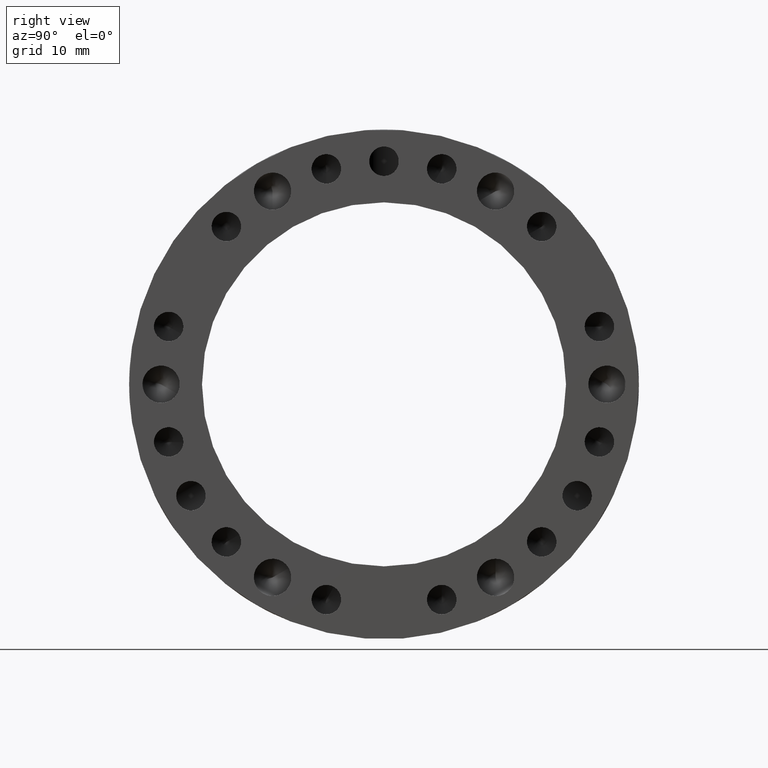
[diagram: clean part render]
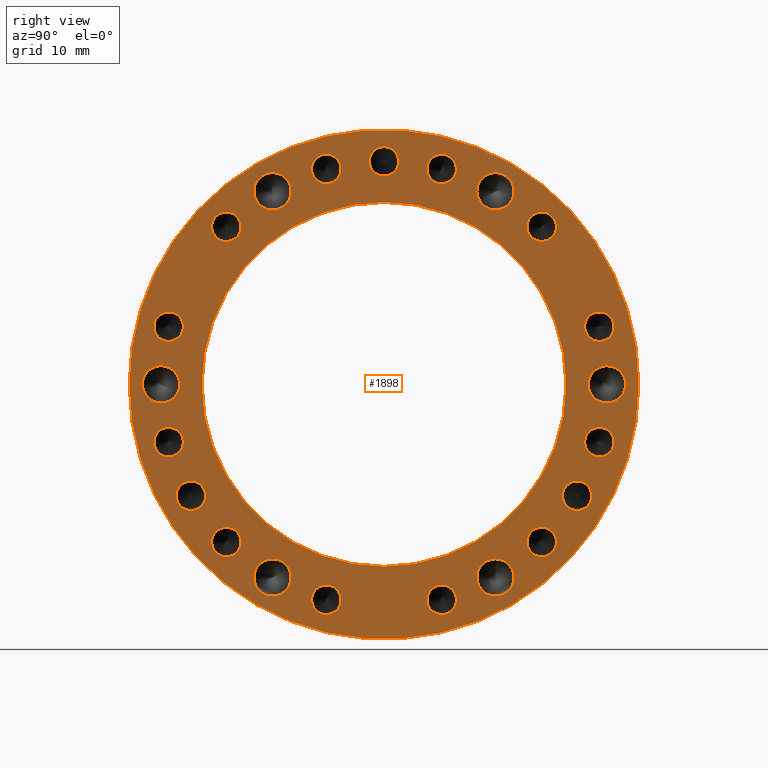
[diagram: same view with one face highlighted and labeled with its STEP entity id]
A machine part, right view. The second image highlights one B-rep face of the part: STEP entity #1898.
In plain terms, the highlighted planar face has unit normal (1, 0, 0).
Its self-contained STEP definition (entity closure, byte-faithful):
#90=CARTESIAN_POINT('',(13.999999999999995,5.530566605011758,22.261355564547593));
#91=VERTEX_POINT('',#90);
#92=CARTESIAN_POINT('',(13.999999999999995,6.341066605011759,23.665182744082166));
#93=DIRECTION('',(-1.0,0.0,0.0));
#94=DIRECTION('',(0.0,-0.5,-0.866025403784438));
#95=AXIS2_PLACEMENT_3D('',#92,#93,#94);
#96=CIRCLE('',#95,1.621);
#97=EDGE_CURVE('',#91,#91,#96,.T.);
#127=CARTESIAN_POINT('',(13.999999999999995,15.920288959535842,16.513616139070404));
#128=VERTEX_POINT('',#127);
#129=CARTESIAN_POINT('',(13.999999999999995,17.324116139070419,17.324116139070405));
#130=DIRECTION('',(-1.0,0.0,0.0));
#131=DIRECTION('',(0.0,-0.866025403784439,-0.499999999999999));
#132=AXIS2_PLACEMENT_3D('',#129,#130,#131);
#133=CIRCLE('',#132,1.621);
#134=EDGE_CURVE('',#128,#128,#133,.T.);
#164=CARTESIAN_POINT('',(13.999999999999995,22.044182744082164,6.34106660501176));
#165=VERTEX_POINT('',#164);
#166=CARTESIAN_POINT('',(13.999999999999995,23.665182744082166,6.341066605011761));
#167=DIRECTION('',(-1.0,0.0,0.0));
#168=DIRECTION('',(0.0,-1.0,0.0));
#169=AXIS2_PLACEMENT_3D('',#166,#167,#168);
#170=CIRCLE('',#169,1.621);
#171=EDGE_CURVE('',#165,#165,#170,.T.);
#201=CARTESIAN_POINT('',(13.999999999999995,22.261355564547593,-5.530566605011758));
#202=VERTEX_POINT('',#201);
#203=CARTESIAN_POINT('',(13.999999999999995,23.665182744082166,-6.341066605011759));
#204=DIRECTION('',(-1.0,0.0,0.0));
#205=DIRECTION('',(0.0,-0.866025403784438,0.5));
#206=AXIS2_PLACEMENT_3D('',#203,#204,#205);
#207=CIRCLE('',#206,1.621);
#208=EDGE_CURVE('',#202,#202,#207,.T.);
#238=CARTESIAN_POINT('',(13.999999999999995,16.513616139070415,-15.920288959535833));
#239=VERTEX_POINT('',#238);
#240=CARTESIAN_POINT('',(13.999999999999995,17.324116139070412,-17.324116139070409));
#241=DIRECTION('',(-1.0,0.0,0.0));
#242=DIRECTION('',(0.0,-0.5,0.866025403784439));
#243=AXIS2_PLACEMENT_3D('',#240,#241,#242);
#244=CIRCLE('',#243,1.621);
#245=EDGE_CURVE('',#239,#239,#244,.T.);
#275=CARTESIAN_POINT('',(13.999999999999995,6.341066605011763,-22.044182744082164));
#276=VERTEX_POINT('',#275);
#277=CARTESIAN_POINT('',(13.999999999999995,6.341066605011764,-23.665182744082166));
#278=DIRECTION('',(-1.0,0.0,0.0));
#279=DIRECTION('',(0.0,0.0,1.0));
#280=AXIS2_PLACEMENT_3D('',#277,#278,#279);
#281=CIRCLE('',#280,1.621);
#282=EDGE_CURVE('',#276,#276,#281,.T.);
#312=CARTESIAN_POINT('',(13.999999999999995,-5.530566605011755,-22.261355564547593));
#313=VERTEX_POINT('',#312);
#314=CARTESIAN_POINT('',(13.999999999999995,-6.341066605011757,-23.665182744082173));
#315=DIRECTION('',(-1.0,0.0,0.0));
#316=DIRECTION('',(0.0,0.5,0.866025403784438));
#317=AXIS2_PLACEMENT_3D('',#314,#315,#316);
#318=CIRCLE('',#317,1.621);
#319=EDGE_CURVE('',#313,#313,#318,.T.);
#349=CARTESIAN_POINT('',(13.999999999999995,-15.920288959535833,-16.513616139070415));
#350=VERTEX_POINT('',#349);
#351=CARTESIAN_POINT('',(13.999999999999995,-17.324116139070409,-17.324116139070412));
#352=DIRECTION('',(-1.0,0.0,0.0));
#353=DIRECTION('',(0.0,0.866025403784439,0.5));
#354=AXIS2_PLACEMENT_3D('',#351,#352,#353);
#355=CIRCLE('',#354,1.621);
#356=EDGE_CURVE('',#350,#350,#355,.T.);
#386=CARTESIAN_POINT('',(13.999999999999995,-22.044182744082171,-6.341066605011766));
#387=VERTEX_POINT('',#386);
#388=CARTESIAN_POINT('',(13.999999999999995,-23.665182744082166,-6.341066605011765));
#389=DIRECTION('',(-1.0,0.0,0.0));
#390=DIRECTION('',(0.0,1.0,0.0));
#391=AXIS2_PLACEMENT_3D('',#388,#389,#390);
#392=CIRCLE('',#391,1.621);
#393=EDGE_CURVE('',#387,#387,#392,.T.);
#423=CARTESIAN_POINT('',(13.999999999999995,-22.261355564547593,5.53056660501175));
#424=VERTEX_POINT('',#423);
#425=CARTESIAN_POINT('',(13.999999999999995,-23.665182744082177,6.341066605011751));
#426=DIRECTION('',(-1.0,0.0,0.0));
#427=DIRECTION('',(0.0,0.866025403784439,-0.5));
#428=AXIS2_PLACEMENT_3D('',#425,#426,#427);
#429=CIRCLE('',#428,1.621);
#430=EDGE_CURVE('',#424,#424,#429,.T.);
#460=CARTESIAN_POINT('',(13.999999999999995,-16.513616139070418,15.920288959535831));
#461=VERTEX_POINT('',#460);
#462=CARTESIAN_POINT('',(13.999999999999995,-17.324116139070416,17.324116139070405));
#463=DIRECTION('',(-1.0,0.0,0.0));
#464=DIRECTION('',(0.0,0.5,-0.866025403784439));
#465=AXIS2_PLACEMENT_3D('',#462,#463,#464);
#466=CIRCLE('',#465,1.621);
#467=EDGE_CURVE('',#461,#461,#466,.T.);
#497=CARTESIAN_POINT('',(13.999999999999995,-6.341066605011767,22.044182744082164));
#498=VERTEX_POINT('',#497);
#499=CARTESIAN_POINT('',(13.999999999999995,-6.341066605011767,23.665182744082166));
#500=DIRECTION('',(-1.0,0.0,0.0));
#501=DIRECTION('',(0.0,0.0,-1.0));
#502=AXIS2_PLACEMENT_3D('',#499,#500,#501);
#503=CIRCLE('',#502,1.621);
#504=EDGE_CURVE('',#498,#498,#503,.T.);
#609=CARTESIAN_POINT('',(13.999999999999995,10.474647922241909,20.192622392718761));
#610=VERTEX_POINT('',#609);
#611=CARTESIAN_POINT('',(13.999999999999995,12.250000000000007,21.217622392718756));
#612=DIRECTION('',(-1.0,0.0,0.0));
#613=DIRECTION('',(0.0,-0.866025403784439,-0.499999999999999));
#614=AXIS2_PLACEMENT_3D('',#611,#612,#613);
#615=CIRCLE('',#614,2.05);
#616=EDGE_CURVE('',#610,#610,#615,.T.);
#721=CARTESIAN_POINT('',(13.999999999999995,22.72464792224191,1.025000000000005));
#722=VERTEX_POINT('',#721);
#723=CARTESIAN_POINT('',(13.999999999999995,24.500000000000011,4.440892E-015));
#724=DIRECTION('',(-1.0,0.0,0.0));
#725=DIRECTION('',(0.0,-0.866025403784438,0.5));
#726=AXIS2_PLACEMENT_3D('',#723,#724,#725);
#727=CIRCLE('',#726,2.05);
#728=EDGE_CURVE('',#722,#722,#727,.T.);
#833=CARTESIAN_POINT('',(13.999999999999995,12.250000000000018,-19.167622392718748));
#834=VERTEX_POINT('',#833);
#835=CARTESIAN_POINT('',(13.999999999999995,12.250000000000018,-21.217622392718752));
#836=DIRECTION('',(-1.0,0.0,0.0));
#837=DIRECTION('',(0.0,0.0,1.0));
#838=AXIS2_PLACEMENT_3D('',#835,#836,#837);
#839=CIRCLE('',#838,2.05);
#840=EDGE_CURVE('',#834,#834,#839,.T.);
#945=CARTESIAN_POINT('',(13.999999999999995,-10.474647922241896,-20.192622392718761));
#946=VERTEX_POINT('',#945);
#947=CARTESIAN_POINT('',(13.999999999999995,-12.249999999999996,-21.217622392718766));
#948=DIRECTION('',(-1.0,0.0,0.0));
#949=DIRECTION('',(0.0,0.866025403784439,0.5));
#950=AXIS2_PLACEMENT_3D('',#947,#948,#949);
#951=CIRCLE('',#950,2.05);
#952=EDGE_CURVE('',#946,#946,#951,.T.);
#1057=CARTESIAN_POINT('',(13.999999999999995,-22.72464792224191,-1.025000000000014));
#1058=VERTEX_POINT('',#1057);
#1059=CARTESIAN_POINT('',(13.999999999999995,-24.500000000000011,-1.332268E-014));
#1060=DIRECTION('',(-1.0,0.0,0.0));
#1061=DIRECTION('',(0.0,0.866025403784439,-0.5));
#1062=AXIS2_PLACEMENT_3D('',#1059,#1060,#1061);
#1063=CIRCLE('',#1062,2.05);
#1064=EDGE_CURVE('',#1058,#1058,#1063,.T.);
#1094=CARTESIAN_POINT('',(13.999999999999995,-12.250000000000018,19.167622392718748));
#1095=VERTEX_POINT('',#1094);
#1096=CARTESIAN_POINT('',(13.999999999999995,-12.250000000000018,21.217622392718745));
#1097=DIRECTION('',(-1.0,0.0,0.0));
#1098=DIRECTION('',(0.0,0.0,-1.0));
#1099=AXIS2_PLACEMENT_3D('',#1096,#1097,#1098);
#1100=CIRCLE('',#1099,2.05);
#1101=EDGE_CURVE('',#1095,#1095,#1100,.T.);
#1189=CARTESIAN_POINT('',(13.999999999999995,19.813795213184168,-11.439500000000011));
#1190=VERTEX_POINT('',#1189);
#1191=CARTESIAN_POINT('',(13.999999999999995,21.217622392718745,-12.250000000000012));
#1192=DIRECTION('',(-1.0,0.0,0.0));
#1193=DIRECTION('',(0.0,-0.866025403784438,0.5));
#1194=AXIS2_PLACEMENT_3D('',#1191,#1192,#1193);
#1195=CIRCLE('',#1194,1.621);
#1196=EDGE_CURVE('',#1190,#1190,#1195,.T.);
#1346=CARTESIAN_POINT('',(13.999999999999995,-19.813795213184175,-11.439499999999995));
#1347=VERTEX_POINT('',#1346);
#1348=CARTESIAN_POINT('',(13.999999999999995,-21.217622392718752,-12.249999999999996));
#1349=DIRECTION('',(-1.0,0.0,0.0));
#1350=DIRECTION('',(0.0,0.866025403784439,0.5));
#1351=AXIS2_PLACEMENT_3D('',#1348,#1349,#1350);
#1352=CIRCLE('',#1351,1.621);
#1353=EDGE_CURVE('',#1347,#1347,#1352,.T.);
#1552=CARTESIAN_POINT('',(13.999999999999995,0.0,22.879000000000001));
#1553=VERTEX_POINT('',#1552);
#1554=CARTESIAN_POINT('',(13.999999999999995,0.0,24.5));
#1555=DIRECTION('',(-1.0,0.0,0.0));
#1556=DIRECTION('',(0.0,0.0,-1.0));
#1557=AXIS2_PLACEMENT_3D('',#1554,#1555,#1556);
#1558=CIRCLE('',#1557,1.621);
#1559=EDGE_CURVE('',#1553,#1553,#1558,.T.);
#1768=CARTESIAN_POINT('',(13.999999999999995,28.0,0.0));
#1769=VERTEX_POINT('',#1768);
#1770=CARTESIAN_POINT('',(13.999999999999995,0.0,0.0));
#1771=DIRECTION('',(1.0,0.0,0.0));
#1772=DIRECTION('',(0.0,1.0,0.0));
#1773=AXIS2_PLACEMENT_3D('',#1770,#1771,#1772);
#1774=CIRCLE('',#1773,28.0);
#1775=EDGE_CURVE('',#1769,#1769,#1774,.T.);
#1816=CARTESIAN_POINT('',(13.999999999999995,24.0,0.0));
#1817=DIRECTION('',(1.0,0.0,0.0));
#1818=DIRECTION('',(0.0,0.0,-1.0));
#1819=AXIS2_PLACEMENT_3D('',#1816,#1817,#1818);
#1820=PLANE('',#1819);
#1821=ORIENTED_EDGE('',*,*,#1775,.T.);
#1822=EDGE_LOOP('',(#1821));
#1823=FACE_OUTER_BOUND('',#1822,.T.);
#1824=ORIENTED_EDGE('',*,*,#97,.T.);
#1825=EDGE_LOOP('',(#1824));
#1826=FACE_BOUND('',#1825,.T.);
#1827=ORIENTED_EDGE('',*,*,#134,.T.);
#1828=EDGE_LOOP('',(#1827));
#1829=FACE_BOUND('',#1828,.T.);
#1830=ORIENTED_EDGE('',*,*,#171,.T.);
#1831=EDGE_LOOP('',(#1830));
#1832=FACE_BOUND('',#1831,.T.);
#1833=ORIENTED_EDGE('',*,*,#208,.T.);
#1834=EDGE_LOOP('',(#1833));
#1835=FACE_BOUND('',#1834,.T.);
#1836=ORIENTED_EDGE('',*,*,#245,.T.);
#1837=EDGE_LOOP('',(#1836));
#1838=FACE_BOUND('',#1837,.T.);
#1839=ORIENTED_EDGE('',*,*,#282,.T.);
#1840=EDGE_LOOP('',(#1839));
#1841=FACE_BOUND('',#1840,.T.);
#1842=ORIENTED_EDGE('',*,*,#319,.T.);
#1843=EDGE_LOOP('',(#1842));
#1844=FACE_BOUND('',#1843,.T.);
#1845=ORIENTED_EDGE('',*,*,#356,.T.);
#1846=EDGE_LOOP('',(#1845));
#1847=FACE_BOUND('',#1846,.T.);
#1848=ORIENTED_EDGE('',*,*,#393,.T.);
#1849=EDGE_LOOP('',(#1848));
#1850=FACE_BOUND('',#1849,.T.);
#1851=ORIENTED_EDGE('',*,*,#430,.T.);
#1852=EDGE_LOOP('',(#1851));
#1853=FACE_BOUND('',#1852,.T.);
#1854=ORIENTED_EDGE('',*,*,#467,.T.);
#1855=EDGE_LOOP('',(#1854));
#1856=FACE_BOUND('',#1855,.T.);
#1857=ORIENTED_EDGE('',*,*,#504,.T.);
#1858=EDGE_LOOP('',(#1857));
#1859=FACE_BOUND('',#1858,.T.);
#1860=ORIENTED_EDGE('',*,*,#616,.T.);
#1861=EDGE_LOOP('',(#1860));
#1862=FACE_BOUND('',#1861,.T.);
#1863=ORIENTED_EDGE('',*,*,#728,.T.);
#1864=EDGE_LOOP('',(#1863));
#1865=FACE_BOUND('',#1864,.T.);
#1866=ORIENTED_EDGE('',*,*,#840,.T.);
#1867=EDGE_LOOP('',(#1866));
#1868=FACE_BOUND('',#1867,.T.);
#1869=ORIENTED_EDGE('',*,*,#952,.T.);
#1870=EDGE_LOOP('',(#1869));
#1871=FACE_BOUND('',#1870,.T.);
#1872=ORIENTED_EDGE('',*,*,#1064,.T.);
#1873=EDGE_LOOP('',(#1872));
#1874=FACE_BOUND('',#1873,.T.);
#1875=ORIENTED_EDGE('',*,*,#1101,.T.);
#1876=EDGE_LOOP('',(#1875));
#1877=FACE_BOUND('',#1876,.T.);
#1878=ORIENTED_EDGE('',*,*,#1196,.T.);
#1879=EDGE_LOOP('',(#1878));
#1880=FACE_BOUND('',#1879,.T.);
#1881=ORIENTED_EDGE('',*,*,#1353,.T.);
#1882=EDGE_LOOP('',(#1881));
#1883=FACE_BOUND('',#1882,.T.);
#1884=ORIENTED_EDGE('',*,*,#1559,.T.);
#1885=EDGE_LOOP('',(#1884));
#1886=FACE_BOUND('',#1885,.T.);
#1887=CARTESIAN_POINT('',(13.999999999999995,20.0,0.0));
#1888=VERTEX_POINT('',#1887);
#1889=CARTESIAN_POINT('',(13.999999999999995,0.0,0.0));
#1890=DIRECTION('',(1.0,0.0,0.0));
#1891=DIRECTION('',(0.0,1.0,0.0));
#1892=AXIS2_PLACEMENT_3D('',#1889,#1890,#1891);
#1893=CIRCLE('',#1892,20.0);
#1894=EDGE_CURVE('',#1888,#1888,#1893,.T.);
#1895=ORIENTED_EDGE('',*,*,#1894,.F.);
#1896=EDGE_LOOP('',(#1895));
#1897=FACE_BOUND('',#1896,.T.);
#1898=ADVANCED_FACE('',(#1823,#1826,#1829,#1832,#1835,#1838,#1841,#1844,#1847,#1850,#1853,#1856,#1859,#1862,#1865,#1868,#1871,#1874,#1877,#1880,#1883,#1886,#1897),#1820,.T.);